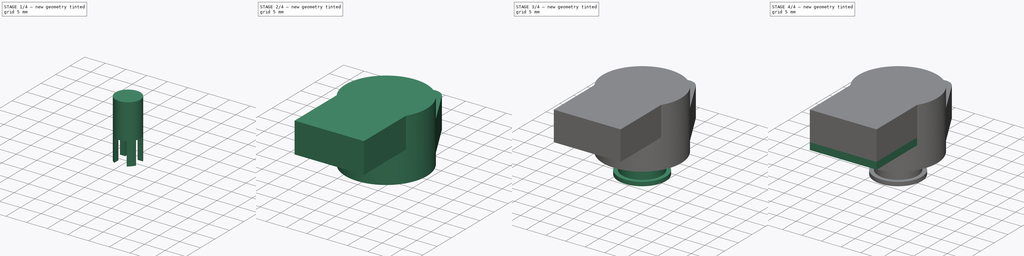
[diagram: build sequence overview — one tinted view per stage of 4, left to right]
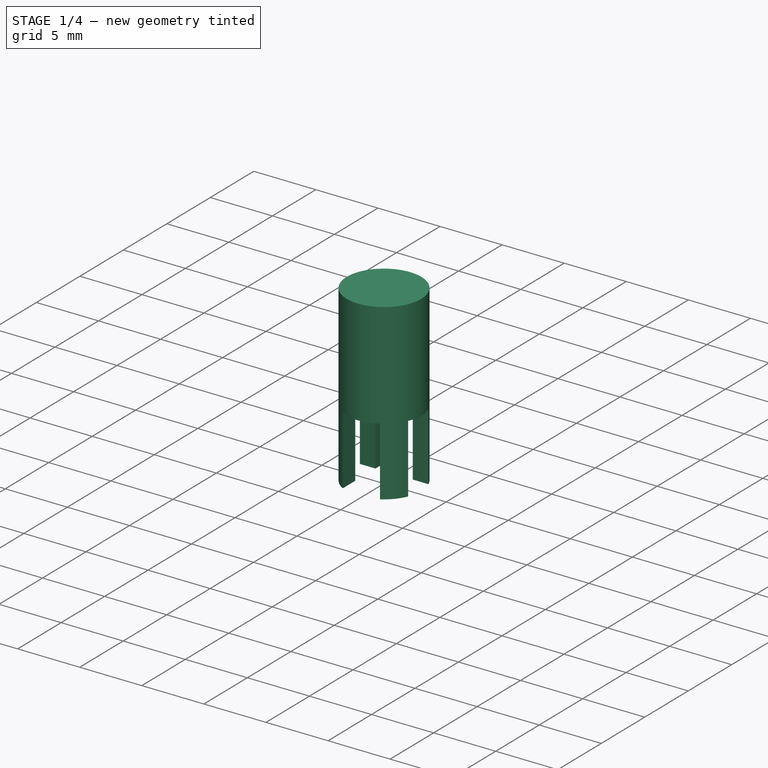
[diagram: stage 1 of 4 — iso view after this stage's code; geometry added in this stage tinted green]
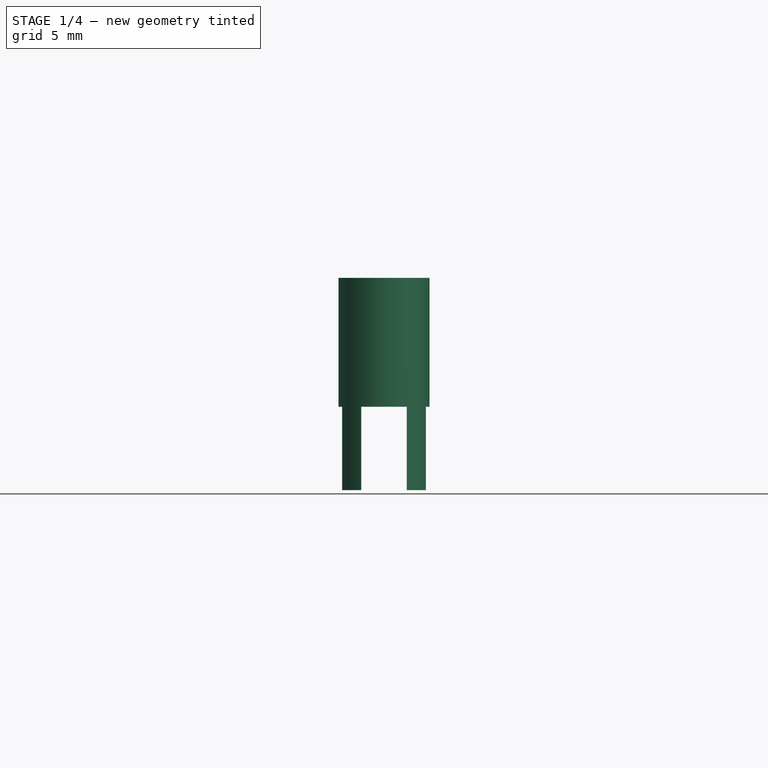
[diagram: stage 1 of 4 — front view after this stage's code; geometry added in this stage tinted green]
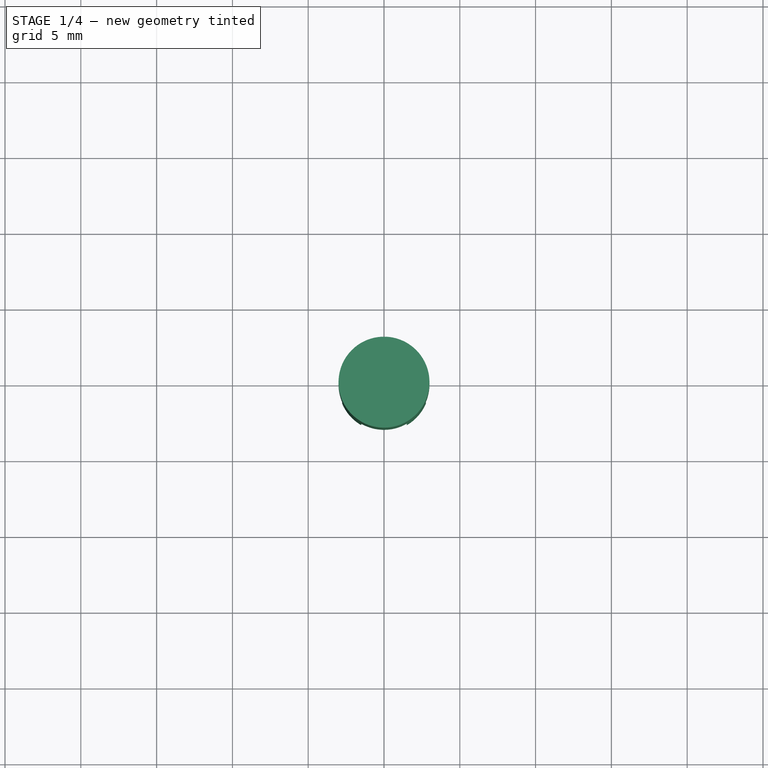
[diagram: stage 1 of 4 — top view after this stage's code; geometry added in this stage tinted green]
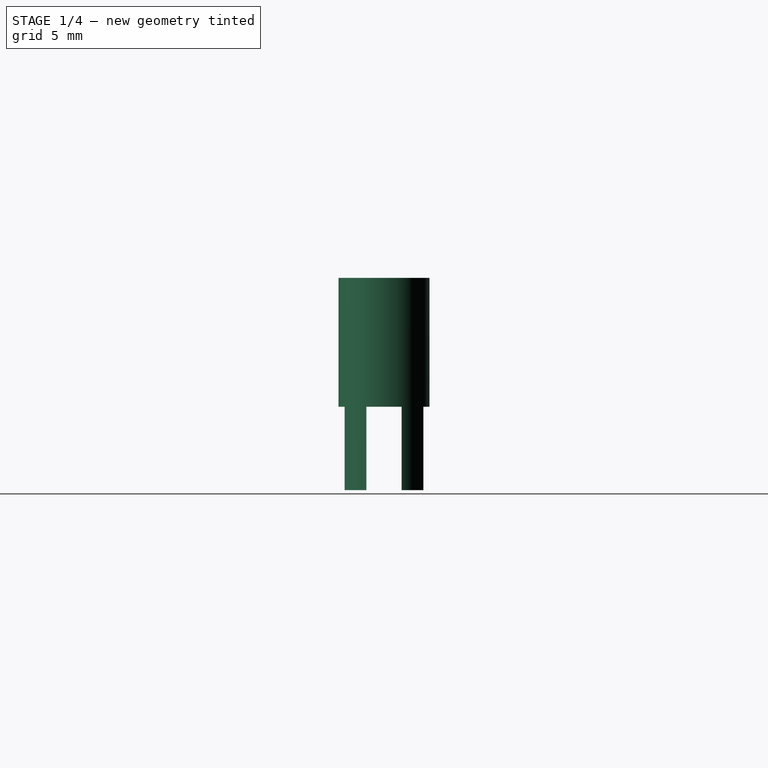
[diagram: stage 1 of 4 — right view after this stage's code; geometry added in this stage tinted green]
FCSTD DOCUMENT  (FreeCAD 0.18R4 (GitTag))
Label: ktm990tps
License: All rights reserved
LicenseURL: http://en.wikipedia.org/wiki/All_rights_reserved
objects: Sketcher::SketchObject×9, PartDesign::Pad×5, PartDesign::Pocket×3, PartDesign::Body×2, PartDesign::Plane×1, PartDesign::Groove×1
note: 30 computed .brp shape members not serialized (recipe doc carries the construction recipe); baked Part::Feature solids carry a one-line shape summary decoded from their .brp

FEATURE [PartDesign::Body] Body  label="TPS Body"
  Group = -> [Sketch,Pad,Sketch001,Pad001,Sketch002,Pocket,Sketch003,Pad002,DatumPlane001,Sketch004,Groove,Sketch005,Pocket001,Sketch006,Pad003]
  Origin = -> Origin
  Tip = -> Pad003
FEATURE [Sketcher::SketchObject] Sketch007
  MapMode = 5
  Support = -> [XY_Plane001]
  sketch-geometry (1):
    g0: Circle CenterX=0 CenterY=0 CenterZ=0 NormalX=0 NormalY=0 NormalZ=1 AngleXU=0 Radius=3
  constraints (2):
    c: Coincident(g0,g-1)
    c: Diameter(g0) = 6
FEATURE [PartDesign::Pad] Pad004
  Length = 14
  Length2 = 100
  Profile = -> Sketch007
  Type = 0
FEATURE [Sketcher::SketchObject] Sketch008
  ExternalGeometry = -> [Pad004]
  MapMode = 5
  Placement = pos=(0,0,0) rot=(1,0,0;3.14159rad)
  Support = -> [Pad004]
  sketch-geometry (12):
    g0: LineSegment StartX=-1.5 StartY=3.45196 StartZ=0 EndX=-1.5 EndY=1.1659 EndZ=0
    g1: LineSegment StartX=-4.47112 StartY=1.1659 StartZ=0 EndX=-1.5 EndY=1.1659 EndZ=0
    g2: LineSegment StartX=1.5 StartY=3.45196 StartZ=0 EndX=1.5 EndY=1.1659 EndZ=0
    g3: LineSegment StartX=4.43844 StartY=1.1659 StartZ=0 EndX=1.5 EndY=1.1659 EndZ=0
    g4: LineSegment StartX=1.5 StartY=-1.1659 StartZ=0 EndX=1.5 EndY=-4.21362 EndZ=0
    g5: LineSegment StartX=1.5 StartY=-1.1659 StartZ=0 EndX=4.43844 EndY=-1.1659 EndZ=0
    g6: LineSegment StartX=-1.5 StartY=-4.21362 StartZ=0 EndX=-1.5 EndY=-1.1659 EndZ=0
    g7: LineSegment StartX=-4.47112 StartY=-1.1659 StartZ=0 EndX=-1.5 EndY=-1.1659 EndZ=0
    g8: LineSegment StartX=-1.5 StartY=-4.21362 StartZ=0 EndX=1.5 EndY=-4.21362 EndZ=0
    g9: LineSegment StartX=4.43844 StartY=-1.1659 StartZ=0 EndX=4.43844 EndY=1.1659 EndZ=0
    g10: LineSegment StartX=-1.5 StartY=3.45196 StartZ=0 EndX=1.5 EndY=3.45196 EndZ=0
    g11: LineSegment StartX=-4.47112 StartY=1.1659 StartZ=0 EndX=-4.47112 EndY=-1.1659 EndZ=0
  constraints (29):
    c: Vertical(g0)
    c: Coincident(g1,g0)
    c: Vertical(g2)
    c: Coincident(g3,g2)
    c: Horizontal(g3)
    c: Vertical(g4)
    c: Coincident(g5,g4)
    c: Horizontal(g5)
    c: Vertical(g6)
    c: Horizontal(g7)
    c: Coincident(g6,g7)
    c: Horizontal(g1)
    c: Symmetric(g6,g2,g-1)
    c: Symmetric(g4,g0,g-1)
    c: Symmetric(g4,g2,g-1)
    c: Symmetric(g4,g6,g-2)
    c: DistanceX(g0,g2) = 3
    c: Coincident(g8,g6)
    c: Coincident(g8,g4)
    c: Coincident(g9,g5)
    c: Coincident(g9,g3)
    c: Coincident(g10,g0)
    c: Coincident(g10,g2)
    c: Coincident(g11,g1)
    c: Coincident(g11,g7)
    c: Vertical(g11)
    c: Vertical(g9)
    c: Horizontal(g10)
    c: Horizontal(g8)
FEATURE [PartDesign::Pocket] Pocket002
  BaseFeature = -> Pad004
  Length = 5.5
  Length2 = 100
  Profile = -> Sketch008
  Type = 0
FEATURE [PartDesign::Body] Body001  label="Shaft"
  Group = -> [Sketch007,Pad004,Sketch008,Pocket002]
  Origin = -> Origin001
  Tip = -> Pocket002
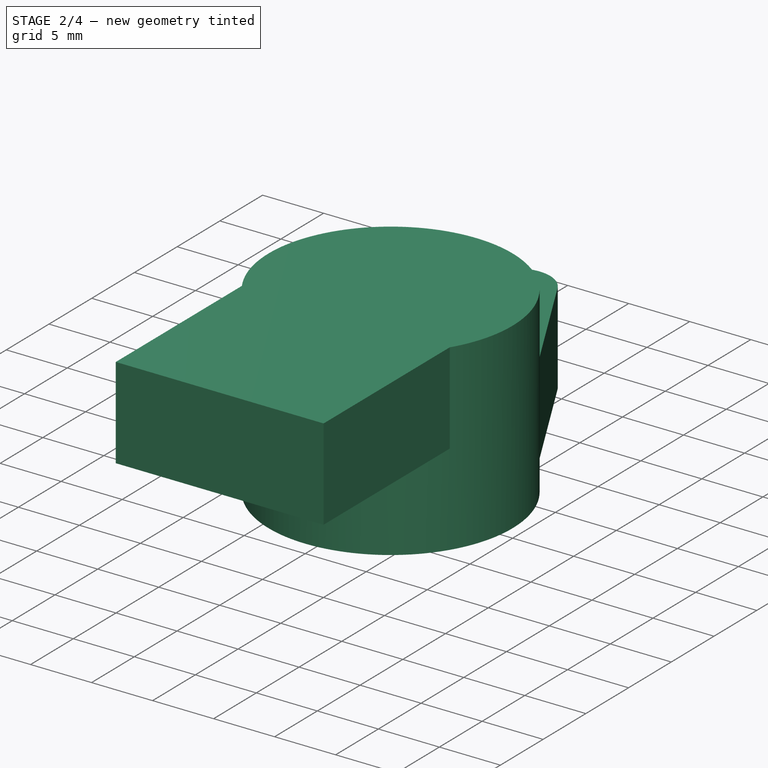
[diagram: stage 2 of 4 — iso view after this stage's code; geometry added in this stage tinted green]
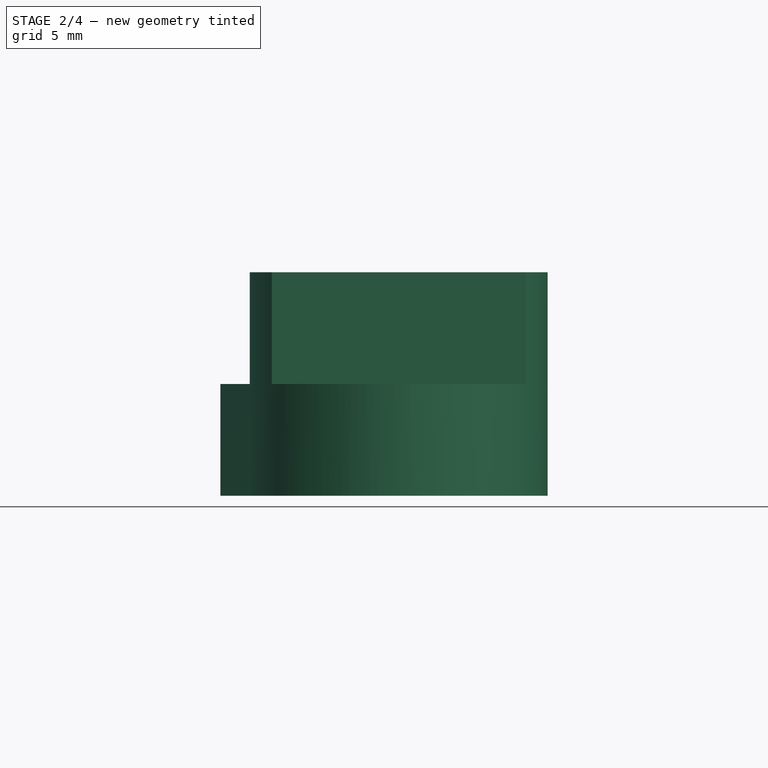
[diagram: stage 2 of 4 — front view after this stage's code; geometry added in this stage tinted green]
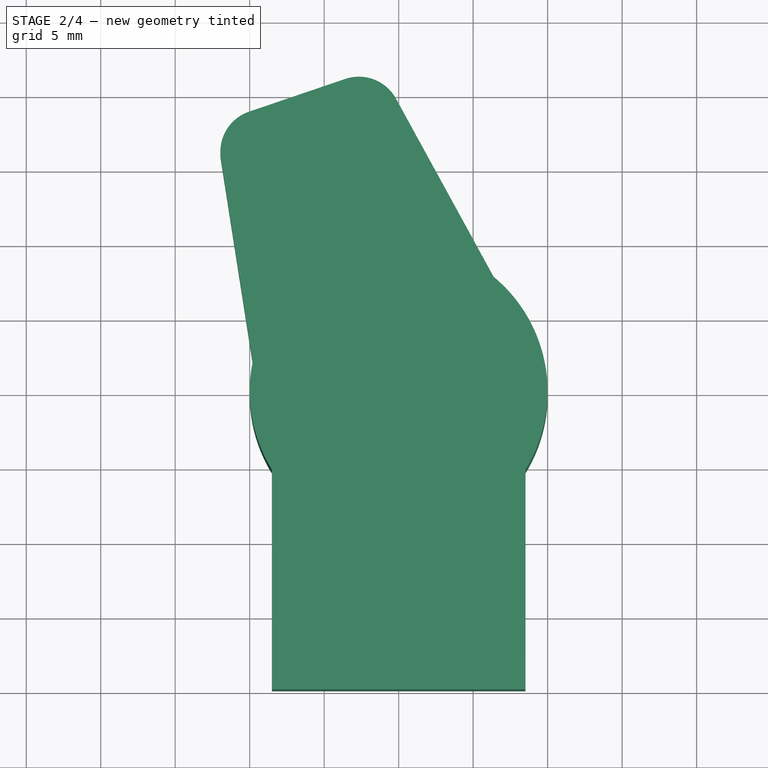
[diagram: stage 2 of 4 — top view after this stage's code; geometry added in this stage tinted green]
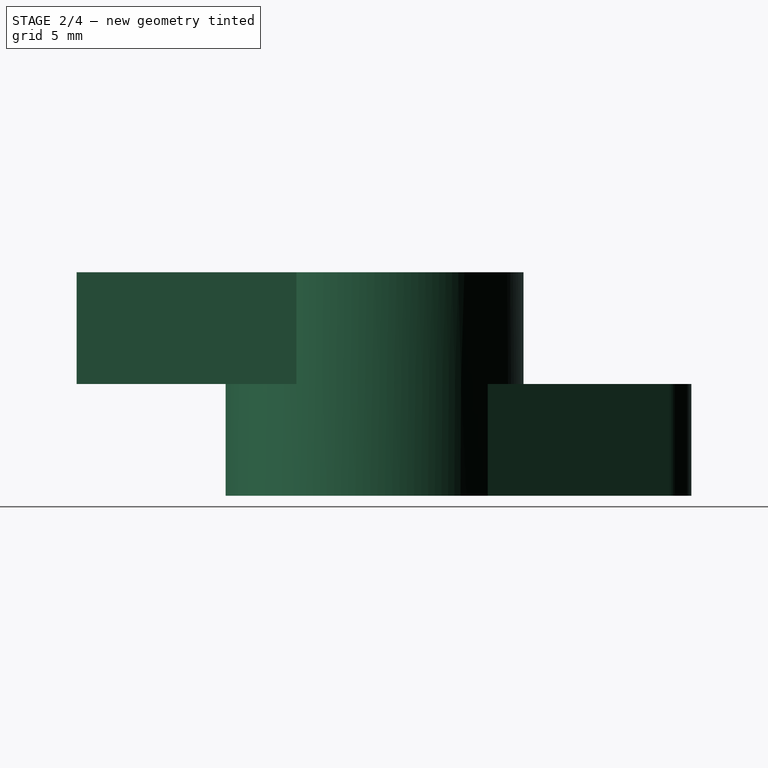
[diagram: stage 2 of 4 — right view after this stage's code; geometry added in this stage tinted green]
FEATURE [Sketcher::SketchObject] Sketch
  MapMode = 5
  Support = -> [XY_Plane]
  sketch-geometry (7):
    g0: LineSegment StartX=-9.78838 StartY=2.04637 StartZ=0 EndX=-11.9352 EndY=15.7871 EndZ=0
    g1: LineSegment StartX=-10.0428 StartY=18.9169 StartZ=0 EndX=-3.58703 EndY=21.1149 EndZ=0
    g2: LineSegment StartX=-0.177989 StartY=19.7902 StartZ=0 EndX=6.50601 EndY=7.5942 EndZ=0
    g3: LineSegment [constr] StartX=0 StartY=0 StartZ=0 EndX=-6.81491 EndY=20.0159 EndZ=0
    g4: ArcOfCircle CenterX=0 CenterY=0 CenterZ=0 NormalX=0 NormalY=0 NormalZ=1 AngleXU=0 Radius=10 StartAngle=2.9355 EndAngle=7.14561
    g5: ArcOfCircle CenterX=-9.12658 CenterY=16.2259 CenterZ=0 NormalX=0 NormalY=0 NormalZ=1 AngleXU=0 Radius=2.84266 StartAngle=1.89896 EndAngle=3.29658
    g6: ArcOfCircle CenterX=-2.67082 CenterY=18.424 CenterZ=0 NormalX=0 NormalY=0 NormalZ=1 AngleXU=0 Radius=2.84266 StartAngle=0.501345 EndAngle=1.89896
  constraints (13):
    c: Radius(g4) = 10
    c: Coincident(g4,g0)
    c: Coincident(g4,g2)
    c: Coincident(g4,g-1)
    c: Coincident(g4,g3)
    c: Symmetric(g0,g2,g3)
    c: PointOnObject(g3,g1)
    c: Tangent(g1,g5) = 1.5708
    c: Tangent(g0,g5) = 1.5708
    c: Tangent(g2,g6) = 1.5708
    c: Tangent(g1,g6) = 1.5708
    c: Symmetric(g1,g1,g3)
    c: Symmetric(g2,g0,g3)
FEATURE [PartDesign::Pad] Pad
  Length = 7.5
  Length2 = 100
  Profile = -> Sketch
  Type = 0
FEATURE [Sketcher::SketchObject] Sketch001
  ExternalGeometry = -> [Pad]
  MapMode = 5
  Placement = pos=(0,0,7.5) rot=(0,0,1;0rad)
  Support = -> [Pad]
  sketch-geometry (6):
    g0: GeomPoint X=0 Y=10 Z=0
    g1: ArcOfCircle CenterX=0 CenterY=0 CenterZ=0 NormalX=0 NormalY=0 NormalZ=1 AngleXU=0 Radius=10 StartAngle=5.73105 EndAngle=9.97691
    g2: LineSegment StartX=-8.51407 StartY=-5.24505 StartZ=0 EndX=-8.51407 EndY=-20 EndZ=0
    g3: LineSegment StartX=-8.51407 StartY=-20 StartZ=0 EndX=8.51407 EndY=-20 EndZ=0
    g4: LineSegment StartX=8.51407 StartY=-20 StartZ=0 EndX=8.51407 EndY=-5.24505 EndZ=0
    g5: LineSegment [constr] StartX=0 StartY=0 StartZ=0 EndX=0 EndY=-20 EndZ=0
  constraints (15):
    c: PointOnObject(g0,g-2)
    c: PointOnObject(g1,g-3)
    c: Coincident(g-1,g1)
    c: PointOnObject(g0,g1)
    c: Coincident(g2,g1)
    c: Vertical(g2)
    c: Vertical(g4)
    c: Horizontal(g3)
    c: Coincident(g4,g1)
    c: Coincident(g4,g3)
    c: Coincident(g2,g3)
    c: Coincident(g1,g5)
    c: PointOnObject(g5,g3)
    c: Symmetric(g3,g2,g5)
    c: DistanceY(g3,g0) = 30
FEATURE [PartDesign::Pad] Pad001
  BaseFeature = -> Pad
  Length = 7.5
  Length2 = 100
  Profile = -> Sketch001
  Type = 0
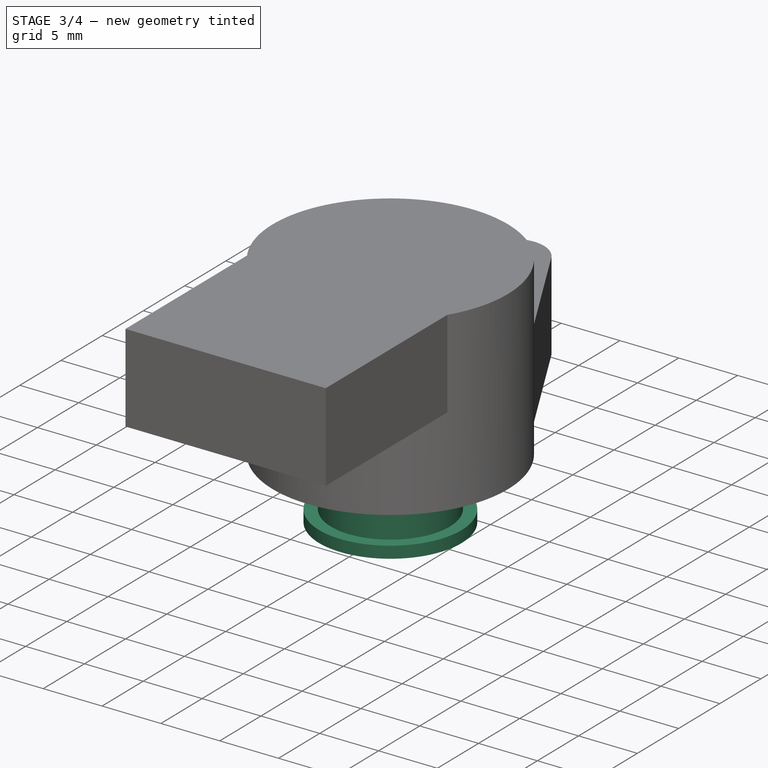
[diagram: stage 3 of 4 — iso view after this stage's code; geometry added in this stage tinted green]
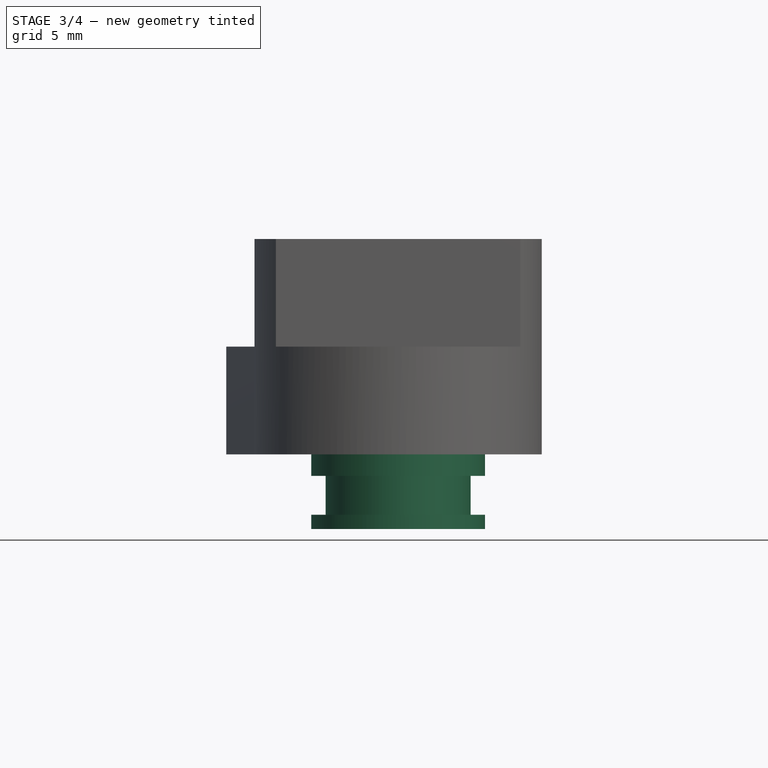
[diagram: stage 3 of 4 — front view after this stage's code; geometry added in this stage tinted green]
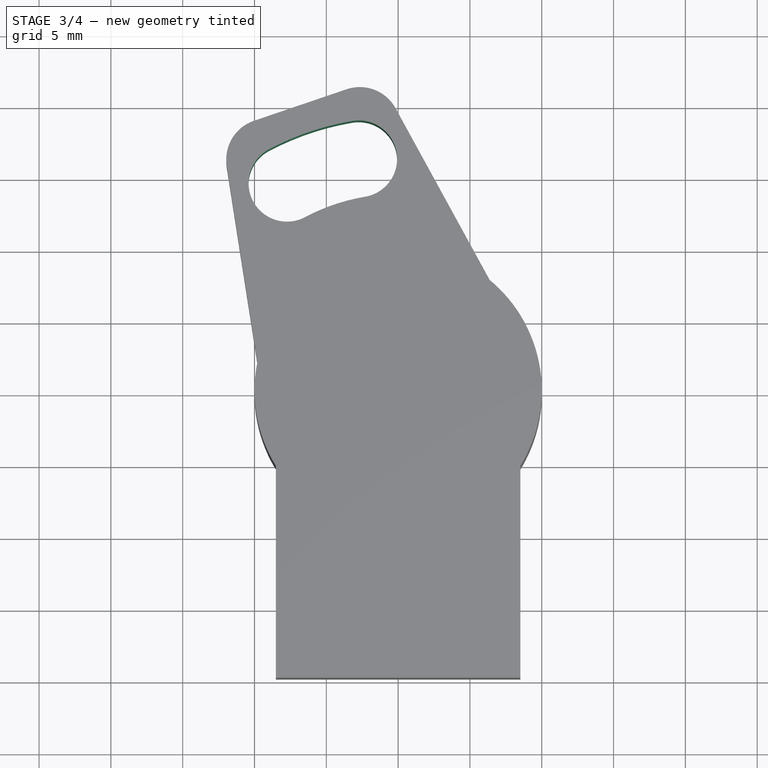
[diagram: stage 3 of 4 — top view after this stage's code; geometry added in this stage tinted green]
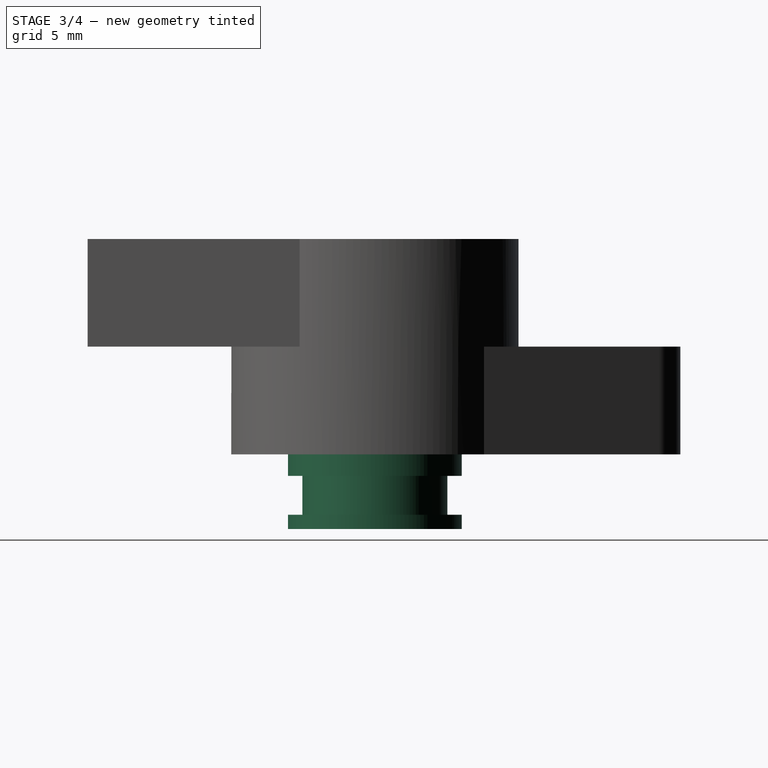
[diagram: stage 3 of 4 — right view after this stage's code; geometry added in this stage tinted green]
FEATURE [Sketcher::SketchObject] Sketch002
  ExternalGeometry = -> [Pad001]
  MapMode = 5
  Placement = pos=(0,0,7.5) rot=(0,0,1;0rad)
  Support = -> [Pad001]
  sketch-geometry (7):
    g0: GeomPoint X=9e-16 Y=0 Z=0
    g1: ArcOfCircle CenterX=9e-16 CenterY=0 CenterZ=0 NormalX=0 NormalY=0 NormalZ=1 AngleXU=0 Radius=19.1729 StartAngle=1.73816 EndAngle=2.059
    g2: ArcOfCircle CenterX=9e-16 CenterY=0 CenterZ=0 NormalX=0 NormalY=0 NormalZ=1 AngleXU=0 Radius=13.8229 StartAngle=1.73816 EndAngle=2.059
    g3: LineSegment [constr] StartX=-6.17264 StartY=18.1521 StartZ=0 EndX=9e-16 EndY=0 EndZ=0
    g4: ArcOfCircle CenterX=-2.74835 CenterY=16.2674 CenterZ=0 NormalX=0 NormalY=0 NormalZ=1 AngleXU=0 Radius=2.675 StartAngle=4.87976 EndAngle=8.02135
    g5: ArcOfCircle CenterX=-7.73813 CenterY=14.5706 CenterZ=0 NormalX=0 NormalY=0 NormalZ=1 AngleXU=0 Radius=2.675 StartAngle=2.059 EndAngle=5.20059
    g6: LineSegment [constr] StartX=-3.19397 StartY=18.905 StartZ=0 EndX=-2.30273 EndY=13.6297 EndZ=0
  constraints (16):
    c: PointOnObject(g0,g-2)
    c: PointOnObject(g0,g-1)
    c: Coincident(g1,g0)
    c: Coincident(g2,g0)
    c: Coincident(g3,g0)
    c: Symmetric(g2,g2,g3)
    c: Coincident(g4,g1)
    c: Coincident(g4,g2)
    c: Coincident(g5,g1)
    c: Coincident(g5,g2)
    c: Diameter(g4) = 5.35
    c: Symmetric(g4,g5,g3)
    c: Coincident(g6,g1)
    c: Coincident(g6,g2)
    c: PointOnObject(g4,g6)
    c: Perpendicular(g1,g6)
FEATURE [PartDesign::Pocket] Pocket
  BaseFeature = -> Pad001
  Length = 7.5
  Length2 = 100
  Profile = -> Sketch002
  Type = 0
FEATURE [Sketcher::SketchObject] Sketch003
  MapMode = 5
  Placement = pos=(0,0,0) rot=(1,0,0;3.14159rad)
  Support = -> [Pocket]
  sketch-geometry (1):
    g0: Circle CenterX=0 CenterY=0 CenterZ=0 NormalX=0 NormalY=0 NormalZ=1 AngleXU=0 Radius=6.05
  constraints (2):
    c: Coincident(g0,g-1)
    c: Diameter(g0) = 12.1
FEATURE [PartDesign::Pad] Pad002
  BaseFeature = -> Pocket
  Length = 5.2
  Length2 = 100
  Profile = -> Sketch003
  Type = 0
FEATURE [PartDesign::Plane] DatumPlane001
  AttachmentOffset = pos=(0,0,0) rot=(1,0,0;1.5708rad)
  Length = 26.6468
  MapMode = 7
  Placement = pos=(6.05,0,0) rot=(1,0,0;1.5708rad)
  ResizeMode = 0
  Support = -> [Pad002]
  Width = 29.6862
FEATURE [Sketcher::SketchObject] Sketch004
  ExternalGeometry = -> [Pad002]
  MapMode = 5
  Placement = pos=(6.05,0,0) rot=(1,0,0;1.5708rad)
  Support = -> [DatumPlane001]
  sketch-geometry (4):
    g0: LineSegment StartX=1.87906 StartY=-1.5 StartZ=0 EndX=-1 EndY=-1.5 EndZ=0
    g1: LineSegment StartX=-1 StartY=-1.5 StartZ=0 EndX=-1 EndY=-4.2 EndZ=0
    g2: LineSegment StartX=-1 StartY=-4.2 StartZ=0 EndX=1.87906 EndY=-4.2 EndZ=0
    g3: LineSegment StartX=1.87906 StartY=-4.2 StartZ=0 EndX=1.87906 EndY=-1.5 EndZ=0
  constraints (11):
    c: Coincident(g0,g1)
    c: Coincident(g1,g2)
    c: Coincident(g2,g3)
    c: Coincident(g3,g0)
    c: Horizontal(g0)
    c: Horizontal(g2)
    c: Vertical(g1)
    c: Vertical(g3)
    c: DistanceY(g-3,g2) = 1
    c: DistanceY(g-3,g0) = 3.7
    c: DistanceX(g1,g-3) = 1
FEATURE [PartDesign::Groove] Groove
  Angle = 360
  Axis = (-3e-16,3e-16,1)
  Base = (0,0,0)
  BaseFeature = -> Pad002
  Profile = -> Sketch004
  ReferenceAxis = -> Z_Axis
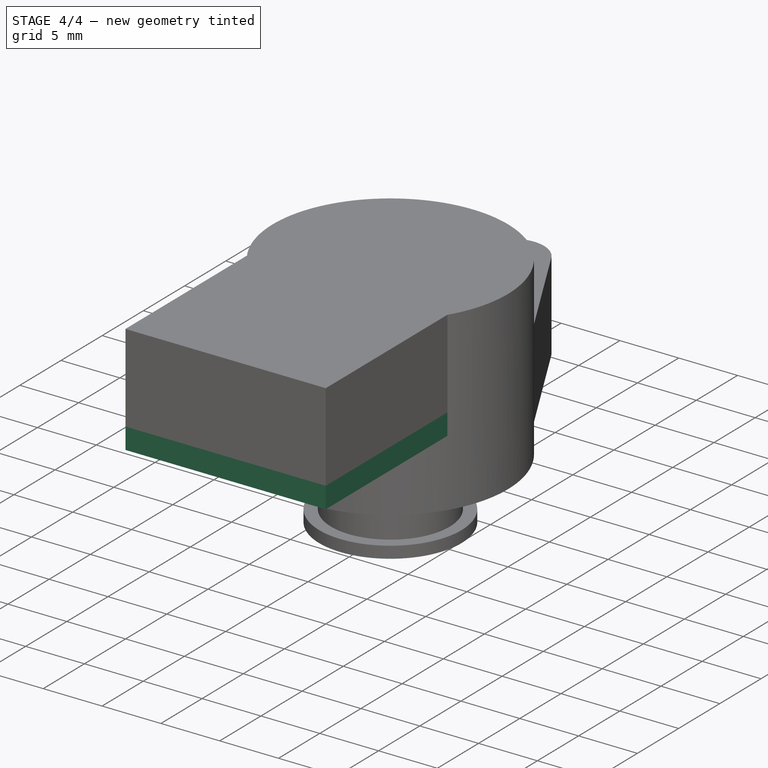
[diagram: stage 4 of 4 — iso view after this stage's code; geometry added in this stage tinted green]
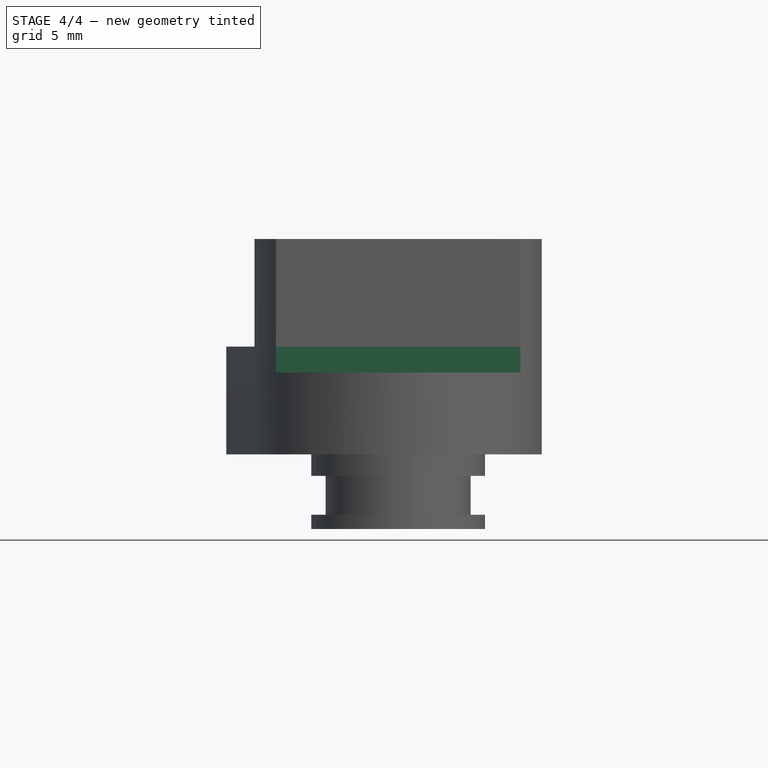
[diagram: stage 4 of 4 — front view after this stage's code; geometry added in this stage tinted green]
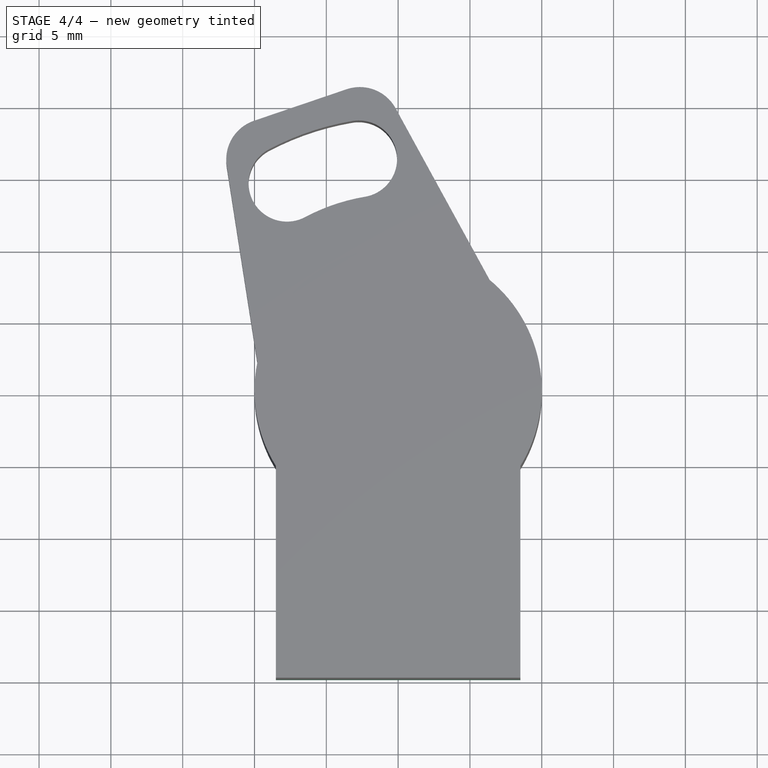
[diagram: stage 4 of 4 — top view after this stage's code; geometry added in this stage tinted green]
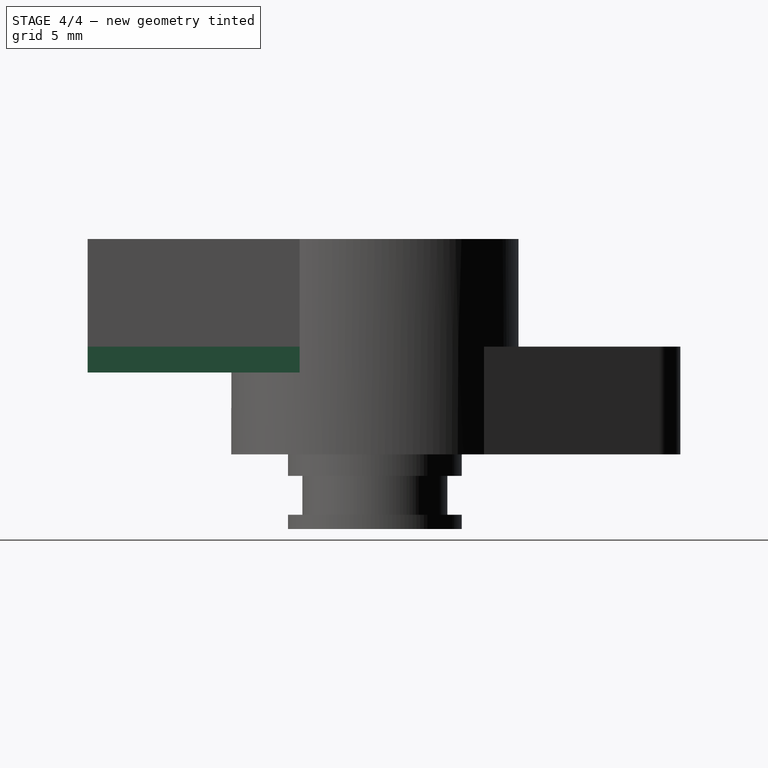
[diagram: stage 4 of 4 — right view after this stage's code; geometry added in this stage tinted green]
FEATURE [Sketcher::SketchObject] Sketch005
  MapMode = 5
  Placement = pos=(0,0,-5.2) rot=(1,0,0;3.14159rad)
  Support = -> [Groove]
  sketch-geometry (1):
    g0: Circle CenterX=0 CenterY=0 CenterZ=0 NormalX=0 NormalY=0 NormalZ=1 AngleXU=0 Radius=3
  constraints (2):
    c: Coincident(g0,g-1)
    c: Diameter(g0) = 6
FEATURE [PartDesign::Pocket] Pocket001
  BaseFeature = -> Groove
  Length = 12.5
  Length2 = 100
  Profile = -> Sketch005
  Type = 0
FEATURE [Sketcher::SketchObject] Sketch006
  ExternalGeometry = -> [Pocket001]
  MapMode = 5
  Placement = pos=(0,0,7.5) rot=(1,0,0;3.14159rad)
  Support = -> [Pocket001]
  sketch-geometry (4):
    g0: LineSegment StartX=-8.51407 StartY=20 StartZ=0 EndX=8.51407 EndY=20 EndZ=0
    g1: LineSegment StartX=-8.51407 StartY=20 StartZ=0 EndX=-8.51407 EndY=5.24505 EndZ=0
    g2: LineSegment StartX=8.51407 StartY=20 StartZ=0 EndX=8.51407 EndY=5.24505 EndZ=0
    g3: LineSegment StartX=-8.51407 StartY=5.24505 StartZ=0 EndX=8.51407 EndY=5.24505 EndZ=0
  constraints (4):
    c: Coincident(g1,g0)
    c: Coincident(g2,g0)
    c: Coincident(g3,g1)
    c: Coincident(g3,g2)
FEATURE [PartDesign::Pad] Pad003
  BaseFeature = -> Pocket001
  Length = 1.8
  Length2 = 100
  Profile = -> Sketch006
  Type = 0
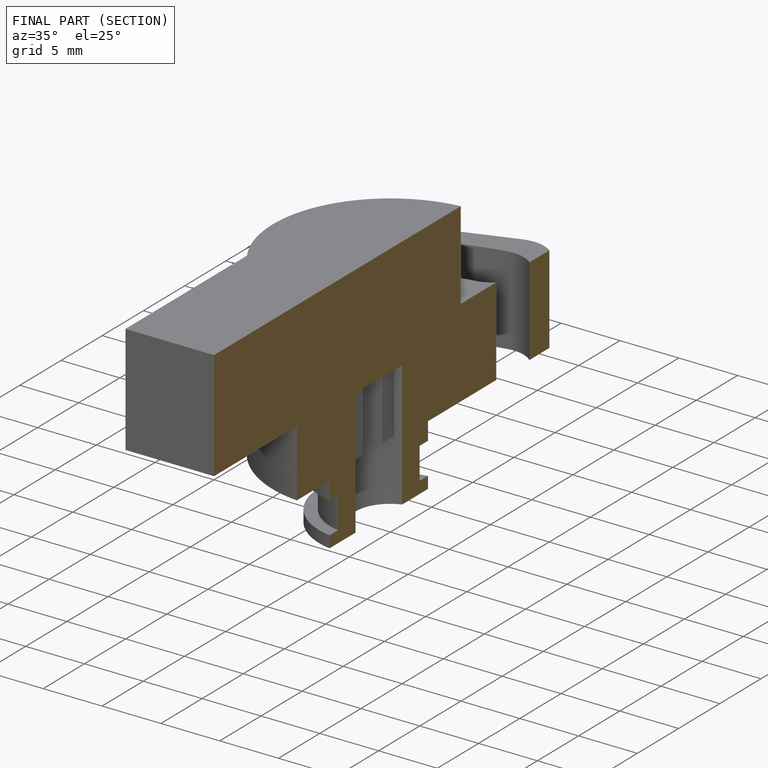
[diagram: finished part — half-section view (interior)]
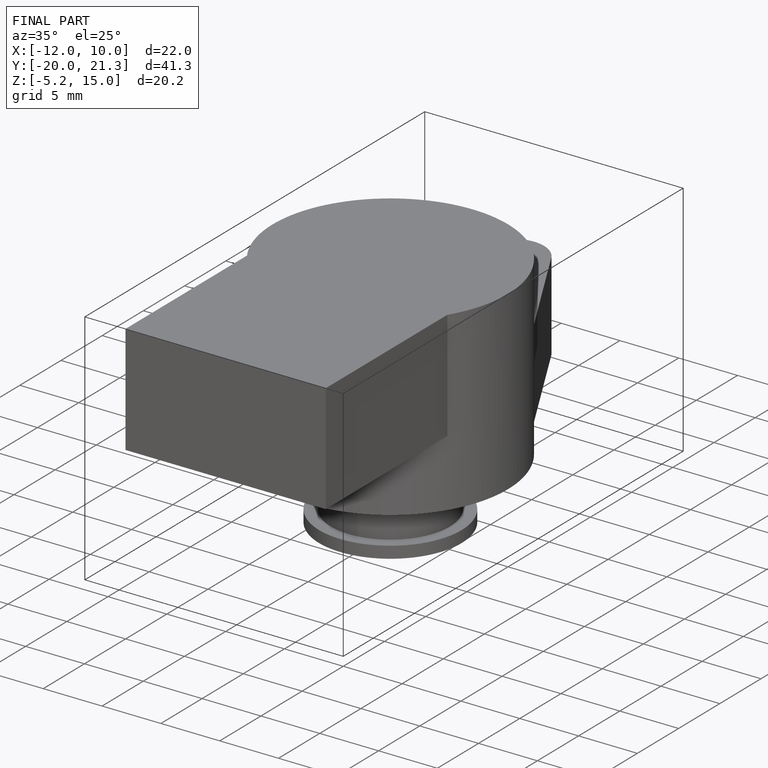
[diagram: finished part — iso view with bounding-box wireframe]
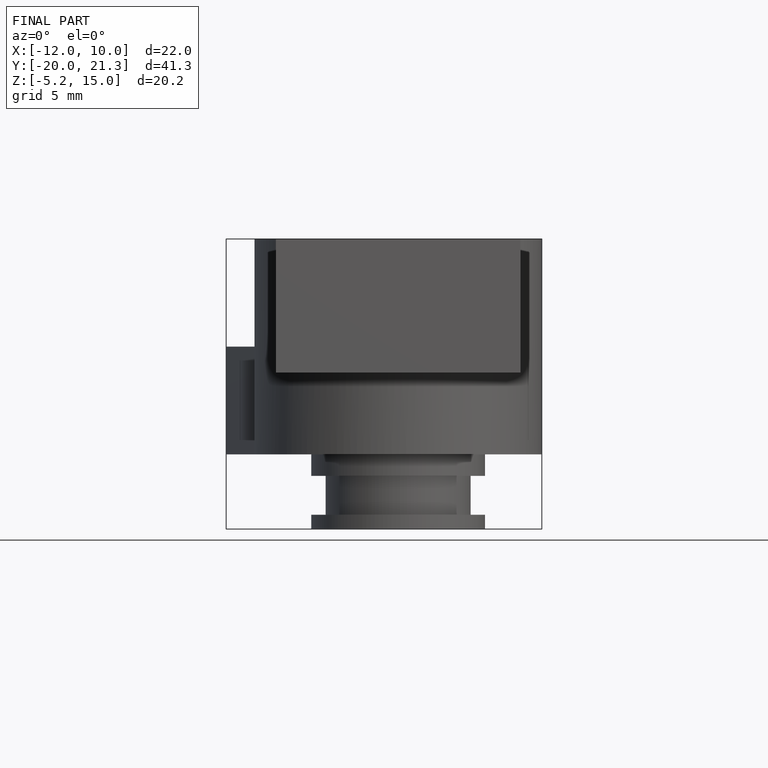
[diagram: finished part — front view with bounding-box wireframe]
